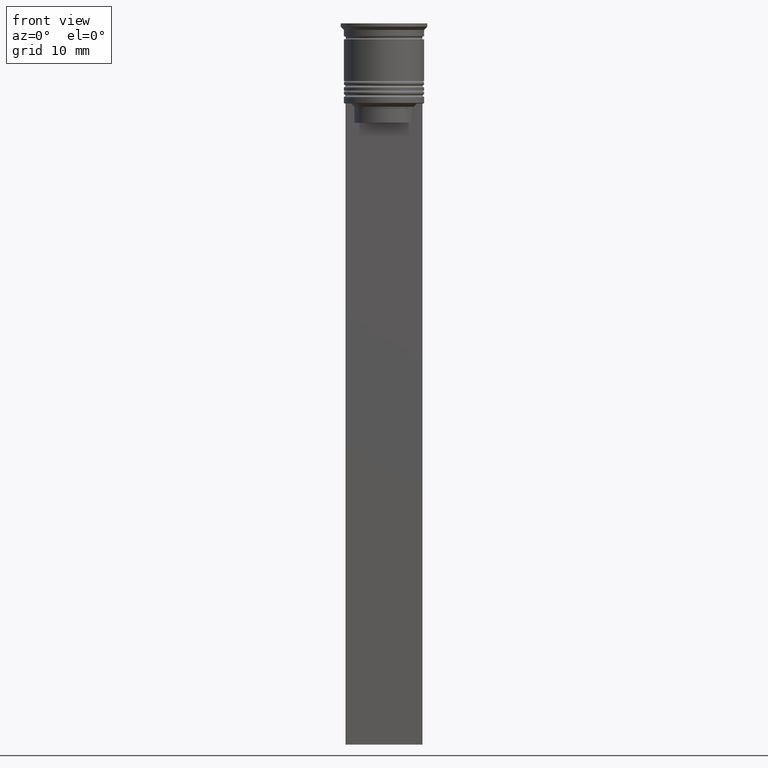
[diagram: clean part render]
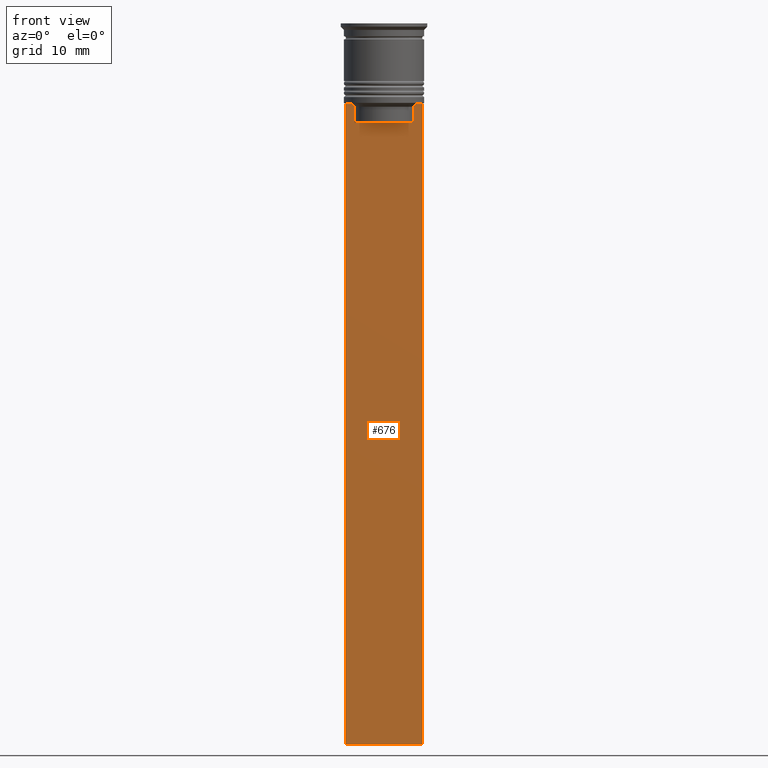
[diagram: same view with one face highlighted and labeled with its STEP entity id]
A machine part, front view. The second image highlights one B-rep face of the part: STEP entity #676.
In plain terms, the highlighted planar face has unit normal (0, -1, -0).
Its self-contained STEP definition (entity closure, byte-faithful):
#58 = ORIENTED_EDGE ( 'NONE', *, *, #634, .F. ) ;
#69 = DIRECTION ( 'NONE',  ( 1.000000000000000000, 0.000000000000000000, 0.000000000000000000 ) ) ;
#108 = LINE ( 'NONE', #2048, #554 ) ;
#124 = LINE ( 'NONE', #1356, #1161 ) ;
#152 = EDGE_CURVE ( 'NONE', #1514, #1761, #2146, .T. ) ;
#223 = EDGE_CURVE ( 'NONE', #1761, #512, #1740, .T. ) ;
#317 = VERTEX_POINT ( 'NONE', #1653 ) ;
#346 = CARTESIAN_POINT ( 'NONE',  ( 4.623040125285526436, -0.5000000000000017764, 0.000000000000000000 ) ) ;
#404 = EDGE_LOOP ( 'NONE', ( #1782, #1133, #1143, #1483, #1918, #2220, #1180, #775, #1583, #58 ) ) ;
#413 = CARTESIAN_POINT ( 'NONE',  ( -4.958169823806760412, -0.5000000000000017764, -12.66670956677067927 ) ) ;
#440 = CARTESIAN_POINT ( 'NONE',  ( 5.125670687822231564, -0.5000000000000017764, -12.50000000000000000 ) ) ;
#491 = CARTESIAN_POINT ( 'NONE',  ( 4.623040125285526436, -0.5000000000000022204, -15.50000000000000000 ) ) ;
#497 = EDGE_CURVE ( 'NONE', #317, #1387, #108, .T. ) ;
#504 = CARTESIAN_POINT ( 'NONE',  ( 5.125670687822231564, -0.5000000000000017764, -12.50000000000000000 ) ) ;
#512 = VERTEX_POINT ( 'NONE', #440 ) ;
#530 = CARTESIAN_POINT ( 'NONE',  ( -4.623040125285526436, -0.5000000000000022204, -15.50000000000000000 ) ) ;
#535 = CARTESIAN_POINT ( 'NONE',  ( -4.623040125285526436, -0.5000000000000017764, -13.00000000000000178 ) ) ;
#554 = VECTOR ( 'NONE', #1140, 1000.000000000000000 ) ;
#581 = VERTEX_POINT ( 'NONE', #1403 ) ;
#634 = EDGE_CURVE ( 'NONE', #1893, #1129, #1193, .T. ) ;
#636 = LINE ( 'NONE', #1209, #790 ) ;
#676 = ADVANCED_FACE ( 'NONE', ( #1372 ), #1240, .T. ) ;
#683 = DIRECTION ( 'NONE',  ( -0.000000000000000000, -0.000000000000000000, 1.000000000000000000 ) ) ;
#693 = CARTESIAN_POINT ( 'NONE',  ( 4.623040125285526436, -0.5000000000000017764, -13.00000000000000178 ) ) ;
#738 = VERTEX_POINT ( 'NONE', #2199 ) ;
#745 = EDGE_CURVE ( 'NONE', #1129, #1514, #2210, .T. ) ;
#775 = ORIENTED_EDGE ( 'NONE', *, *, #152, .F. ) ;
#787 = B_SPLINE_CURVE_WITH_KNOTS ( 'NONE', 3,
 ( #1303, #413, #1846, #958 ),
 .UNSPECIFIED., .F., .F.,
 ( 4, 4 ),
 ( 0.008759809102772709091, 0.009468778395565353653 ),
 .UNSPECIFIED. ) ;
#790 = VECTOR ( 'NONE', #1167, 1000.000000000000000 ) ;
#851 = DIRECTION ( 'NONE',  ( 0.000000000000000000, 0.000000000000000000, -1.000000000000000000 ) ) ;
#906 = EDGE_CURVE ( 'NONE', #512, #317, #124, .T. ) ;
#953 = EDGE_CURVE ( 'NONE', #2330, #581, #636, .T. ) ;
#958 = CARTESIAN_POINT ( 'NONE',  ( -4.623040125285526436, -0.5000000000000017764, -13.00000000000000178 ) ) ;
#978 = LINE ( 'NONE', #1878, #1001 ) ;
#1001 = VECTOR ( 'NONE', #2277, 1000.000000000000000 ) ;
#1129 = VERTEX_POINT ( 'NONE', #530 ) ;
#1133 = ORIENTED_EDGE ( 'NONE', *, *, #953, .F. ) ;
#1140 = DIRECTION ( 'NONE',  ( 0.000000000000000000, 0.000000000000000000, -1.000000000000000000 ) ) ;
#1143 = ORIENTED_EDGE ( 'NONE', *, *, #1391, .T. ) ;
#1161 = VECTOR ( 'NONE', #1511, 1000.000000000000000 ) ;
#1167 = DIRECTION ( 'NONE',  ( 1.000000000000000000, 0.000000000000000000, 0.000000000000000000 ) ) ;
#1180 = ORIENTED_EDGE ( 'NONE', *, *, #223, .F. ) ;
#1193 = LINE ( 'NONE', #1911, #1607 ) ;
#1203 = DIRECTION ( 'NONE',  ( 0.000000000000000000, -1.000000000000000000, -0.000000000000000000 ) ) ;
#1204 = LINE ( 'NONE', #1781, #1901 ) ;
#1209 = CARTESIAN_POINT ( 'NONE',  ( 6.000000000000016875, -0.5000000000000017764, -12.50000000000000000 ) ) ;
#1240 = PLANE ( 'NONE',  #1273 ) ;
#1261 = EDGE_CURVE ( 'NONE', #581, #1893, #787, .T. ) ;
#1272 = VECTOR ( 'NONE', #683, 1000.000000000000000 ) ;
#1273 = AXIS2_PLACEMENT_3D ( 'NONE', #2106, #1203, #1925 ) ;
#1303 = CARTESIAN_POINT ( 'NONE',  ( -5.125670687822231564, -0.5000000000000017764, -12.50000000000000000 ) ) ;
#1356 = CARTESIAN_POINT ( 'NONE',  ( 6.000000000000016875, -0.5000000000000017764, -12.50000000000000000 ) ) ;
#1372 = FACE_OUTER_BOUND ( 'NONE', #404, .T. ) ;
#1384 = CARTESIAN_POINT ( 'NONE',  ( 4.958169719475987947, -0.5000000000000017764, -12.66670967060858111 ) ) ;
#1387 = VERTEX_POINT ( 'NONE', #1545 ) ;
#1391 = EDGE_CURVE ( 'NONE', #2330, #738, #978, .T. ) ;
#1403 = CARTESIAN_POINT ( 'NONE',  ( -5.125670687822231564, -0.5000000000000017764, -12.50000000000000000 ) ) ;
#1483 = ORIENTED_EDGE ( 'NONE', *, *, #1891, .F. ) ;
#1511 = DIRECTION ( 'NONE',  ( 1.000000000000000000, 0.000000000000000000, 0.000000000000000000 ) ) ;
#1514 = VERTEX_POINT ( 'NONE', #491 ) ;
#1545 = CARTESIAN_POINT ( 'NONE',  ( 6.000000000000016875, -0.5000000000000017764, -112.5000000000000000 ) ) ;
#1575 = DIRECTION ( 'NONE',  ( -1.000000000000000000, 0.000000000000000000, 0.000000000000000000 ) ) ;
#1583 = ORIENTED_EDGE ( 'NONE', *, *, #745, .F. ) ;
#1607 = VECTOR ( 'NONE', #851, 1000.000000000000000 ) ;
#1653 = CARTESIAN_POINT ( 'NONE',  ( 6.000000000000016875, -0.5000000000000017764, -12.50000000000000000 ) ) ;
#1683 = CARTESIAN_POINT ( 'NONE',  ( 0.000000000000000000, -0.5000000000000022204, -15.50000000000000000 ) ) ;
#1740 = B_SPLINE_CURVE_WITH_KNOTS ( 'NONE', 3,
 ( #693, #2121, #1384, #504 ),
 .UNSPECIFIED., .F., .F.,
 ( 4, 4 ),
 ( 0.02203698174624552780, 0.02275222543365896383 ),
 .UNSPECIFIED. ) ;
#1761 = VERTEX_POINT ( 'NONE', #1875 ) ;
#1781 = CARTESIAN_POINT ( 'NONE',  ( 6.000000000000016875, -0.5000000000000017764, -112.5000000000000000 ) ) ;
#1782 = ORIENTED_EDGE ( 'NONE', *, *, #1261, .F. ) ;
#1846 = CARTESIAN_POINT ( 'NONE',  ( -4.790630915080664742, -0.5000000000000017764, -12.83338087185995491 ) ) ;
#1875 = CARTESIAN_POINT ( 'NONE',  ( 4.623040125285526436, -0.5000000000000017764, -13.00000000000000178 ) ) ;
#1878 = CARTESIAN_POINT ( 'NONE',  ( -5.999999999999983125, -0.5000000000000017764, -0.4584054212077061097 ) ) ;
#1891 = EDGE_CURVE ( 'NONE', #1387, #738, #1204, .T. ) ;
#1893 = VERTEX_POINT ( 'NONE', #535 ) ;
#1901 = VECTOR ( 'NONE', #1575, 1000.000000000000000 ) ;
#1911 = CARTESIAN_POINT ( 'NONE',  ( -4.623040125285526436, -0.5000000000000017764, 0.000000000000000000 ) ) ;
#1918 = ORIENTED_EDGE ( 'NONE', *, *, #497, .F. ) ;
#1925 = DIRECTION ( 'NONE',  ( 0.000000000000000000, 0.000000000000000000, -1.000000000000000000 ) ) ;
#2048 = CARTESIAN_POINT ( 'NONE',  ( 6.000000000000016875, -0.5000000000000017764, -0.4584054212077061097 ) ) ;
#2104 = VECTOR ( 'NONE', #69, 1000.000000000000000 ) ;
#2106 = CARTESIAN_POINT ( 'NONE',  ( 6.000000000000016875, -0.5000000000000017764, -0.4584054212077061097 ) ) ;
#2116 = CARTESIAN_POINT ( 'NONE',  ( -5.999999999999983125, -0.5000000000000017764, -12.50000000000000000 ) ) ;
#2121 = CARTESIAN_POINT ( 'NONE',  ( 4.790630799407577634, -0.5000000000000017764, -12.83338098686238915 ) ) ;
#2146 = LINE ( 'NONE', #346, #1272 ) ;
#2199 = CARTESIAN_POINT ( 'NONE',  ( -5.999999999999983125, -0.5000000000000017764, -112.5000000000000000 ) ) ;
#2210 = LINE ( 'NONE', #1683, #2104 ) ;
#2220 = ORIENTED_EDGE ( 'NONE', *, *, #906, .F. ) ;
#2277 = DIRECTION ( 'NONE',  ( 0.000000000000000000, 0.000000000000000000, -1.000000000000000000 ) ) ;
#2330 = VERTEX_POINT ( 'NONE', #2116 ) ;